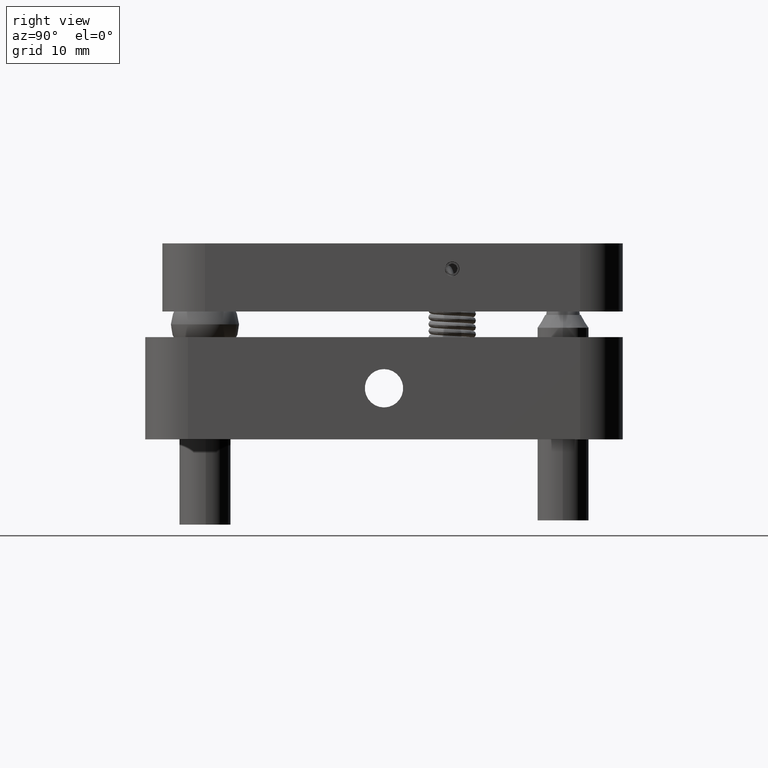
[diagram: clean part render]
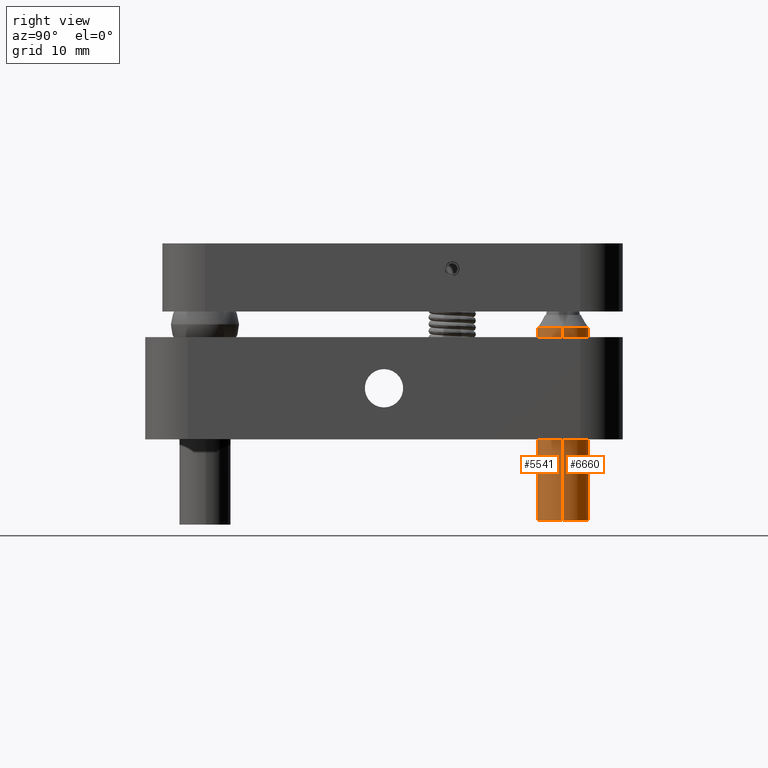
[diagram: same view with one multi-face feature highlighted, each face labeled with its STEP entity id]
A machine part, right view. The highlighted faces form ONE feature: a constant-radius fillet chain: 2 tangent blend faces with common blend radius 3 mm. The faces share edges in the B-rep.
Their STEP definitions:
[1] entity #5541 (Cylinder):
#67 = DIRECTION ( 'NONE',  ( 0.9999645372822545397, -0.008421649356671796066, 0.000000000000000000 ) ) ;
#664 = CARTESIAN_POINT ( 'NONE',  ( 18.00010638815322395, 21.02526494807002777, -24.49594898235215013 ) ) ;
#1257 = CARTESIAN_POINT ( 'NONE',  ( 23.99989361184675829, 20.97473505192999355, -1.895948982352149814 ) ) ;
#1393 = VECTOR ( 'NONE', #5382, 1000.000000000000000 ) ;
#1450 = ORIENTED_EDGE ( 'NONE', *, *, #10036, .T. ) ;
#1579 = DIRECTION ( 'NONE',  ( 0.9999645372822545397, -0.008421649356671796066, 0.000000000000000000 ) ) ;
#1780 = CIRCLE ( 'NONE', #9554, 3.000000000000000444 ) ;
#1846 = VERTEX_POINT ( 'NONE', #664 ) ;
#1877 = CIRCLE ( 'NONE', #6113, 3.000000000000000444 ) ;
#1960 = DIRECTION ( 'NONE',  ( 2.878923793137280352E-16, -1.671392772916721613E-16, 1.000000000000000000 ) ) ;
#2091 = CARTESIAN_POINT ( 'NONE',  ( 20.99999999999999289, 21.00000000000000711, -1.895948982352148926 ) ) ;
#2241 = EDGE_LOOP ( 'NONE', ( #13136, #3162, #1450, #8494 ) ) ;
#2903 = DIRECTION ( 'NONE',  ( 2.878923793137280352E-16, -1.671392772916721613E-16, 1.000000000000000000 ) ) ;
#3075 = EDGE_CURVE ( 'NONE', #1846, #4399, #12869, .T. ) ;
#3162 = ORIENTED_EDGE ( 'NONE', *, *, #4337, .T. ) ;
#4337 = EDGE_CURVE ( 'NONE', #1846, #7628, #1877, .T. ) ;
#4387 = VECTOR ( 'NONE', #12379, 1000.000000000000000 ) ;
#4399 = VERTEX_POINT ( 'NONE', #13642 ) ;
#5048 = EDGE_CURVE ( 'NONE', #4399, #7010, #1780, .T. ) ;
#5382 = DIRECTION ( 'NONE',  ( 2.878923793137280352E-16, -1.671392772916721613E-16, 1.000000000000000000 ) ) ;
#5541 = ADVANCED_FACE ( 'NONE', ( #9017 ), #11106, .T. ) ;
#6113 = AXIS2_PLACEMENT_3D ( 'NONE', #13710, #1960, #67 ) ;
#6478 = AXIS2_PLACEMENT_3D ( 'NONE', #8947, #2903, #1579 ) ;
#7010 = VERTEX_POINT ( 'NONE', #1257 ) ;
#7628 = VERTEX_POINT ( 'NONE', #8355 ) ;
#8092 = LINE ( 'NONE', #10233, #4387 ) ;
#8355 = CARTESIAN_POINT ( 'NONE',  ( 23.99989361184675118, 20.97473505193000065, -24.49594898235215013 ) ) ;
#8494 = ORIENTED_EDGE ( 'NONE', *, *, #5048, .F. ) ;
#8947 = CARTESIAN_POINT ( 'NONE',  ( 21.00000000000000355, 21.00000000000000355, 33.09316836970400999 ) ) ;
#9017 = FACE_OUTER_BOUND ( 'NONE', #2241, .T. ) ;
#9518 = DIRECTION ( 'NONE',  ( 2.878923793137280352E-16, -1.671392772916721613E-16, 1.000000000000000000 ) ) ;
#9554 = AXIS2_PLACEMENT_3D ( 'NONE', #2091, #9518, #10568 ) ;
#10036 = EDGE_CURVE ( 'NONE', #7628, #7010, #8092, .T. ) ;
#10233 = CARTESIAN_POINT ( 'NONE',  ( 23.99989361184676895, 20.97473505192998999, 33.09316836970400999 ) ) ;
#10568 = DIRECTION ( 'NONE',  ( 0.9999645372822545397, -0.008421649356671796066, -2.891205793294677833E-16 ) ) ;
#11106 = CYLINDRICAL_SURFACE ( 'NONE', #6478, 3.000000000000000444 ) ;
#12379 = DIRECTION ( 'NONE',  ( 2.878923793137280352E-16, -1.671392772916721613E-16, 1.000000000000000000 ) ) ;
#12601 = CARTESIAN_POINT ( 'NONE',  ( 18.00010638815324171, 21.02526494807002067, 33.09316836970400999 ) ) ;
#12869 = LINE ( 'NONE', #12601, #1393 ) ;
#13136 = ORIENTED_EDGE ( 'NONE', *, *, #3075, .F. ) ;
#13642 = CARTESIAN_POINT ( 'NONE',  ( 18.00010638815323105, 21.02526494807002422, -1.895948982352148038 ) ) ;
#13710 = CARTESIAN_POINT ( 'NONE',  ( 20.99999999999998579, 21.00000000000001421, -24.49594898235215013 ) ) ;
[2] entity #6660 (Cylinder):
#165 = ORIENTED_EDGE ( 'NONE', *, *, #933, .T. ) ;
#664 = CARTESIAN_POINT ( 'NONE',  ( 18.00010638815322395, 21.02526494807002777, -24.49594898235215013 ) ) ;
#701 = CARTESIAN_POINT ( 'NONE',  ( 21.00000000000000355, 21.00000000000000355, 33.09316836970400999 ) ) ;
#933 = EDGE_CURVE ( 'NONE', #7628, #1846, #2452, .T. ) ;
#1140 = DIRECTION ( 'NONE',  ( 0.9999645372822545397, -0.008421649356671796066, -2.891205793294677833E-16 ) ) ;
#1257 = CARTESIAN_POINT ( 'NONE',  ( 23.99989361184675829, 20.97473505192999355, -1.895948982352149814 ) ) ;
#1393 = VECTOR ( 'NONE', #5382, 1000.000000000000000 ) ;
#1846 = VERTEX_POINT ( 'NONE', #664 ) ;
#2452 = CIRCLE ( 'NONE', #9111, 3.000000000000000444 ) ;
#3075 = EDGE_CURVE ( 'NONE', #1846, #4399, #12869, .T. ) ;
#3500 = AXIS2_PLACEMENT_3D ( 'NONE', #701, #7272, #11494 ) ;
#4387 = VECTOR ( 'NONE', #12379, 1000.000000000000000 ) ;
#4399 = VERTEX_POINT ( 'NONE', #13642 ) ;
#5113 = CYLINDRICAL_SURFACE ( 'NONE', #3500, 3.000000000000000444 ) ;
#5246 = ORIENTED_EDGE ( 'NONE', *, *, #6154, .F. ) ;
#5382 = DIRECTION ( 'NONE',  ( 2.878923793137280352E-16, -1.671392772916721613E-16, 1.000000000000000000 ) ) ;
#5464 = DIRECTION ( 'NONE',  ( 2.878923793137280352E-16, -1.671392772916721613E-16, 1.000000000000000000 ) ) ;
#5675 = DIRECTION ( 'NONE',  ( 2.878923793137280352E-16, -1.671392772916721613E-16, 1.000000000000000000 ) ) ;
#5986 = EDGE_LOOP ( 'NONE', ( #165, #13065, #5246, #12624 ) ) ;
#6154 = EDGE_CURVE ( 'NONE', #7010, #4399, #11324, .T. ) ;
#6660 = ADVANCED_FACE ( 'NONE', ( #10239 ), #5113, .T. ) ;
#7010 = VERTEX_POINT ( 'NONE', #1257 ) ;
#7272 = DIRECTION ( 'NONE',  ( 2.878923793137280352E-16, -1.671392772916721613E-16, 1.000000000000000000 ) ) ;
#7571 = AXIS2_PLACEMENT_3D ( 'NONE', #10868, #5675, #1140 ) ;
#7628 = VERTEX_POINT ( 'NONE', #8355 ) ;
#8092 = LINE ( 'NONE', #10233, #4387 ) ;
#8355 = CARTESIAN_POINT ( 'NONE',  ( 23.99989361184675118, 20.97473505193000065, -24.49594898235215013 ) ) ;
#9111 = AXIS2_PLACEMENT_3D ( 'NONE', #11902, #5464, #9681 ) ;
#9681 = DIRECTION ( 'NONE',  ( 0.9999645372822545397, -0.008421649356671796066, 0.000000000000000000 ) ) ;
#10036 = EDGE_CURVE ( 'NONE', #7628, #7010, #8092, .T. ) ;
#10233 = CARTESIAN_POINT ( 'NONE',  ( 23.99989361184676895, 20.97473505192998999, 33.09316836970400999 ) ) ;
#10239 = FACE_OUTER_BOUND ( 'NONE', #5986, .T. ) ;
#10868 = CARTESIAN_POINT ( 'NONE',  ( 20.99999999999999289, 21.00000000000000711, -1.895948982352148926 ) ) ;
#11324 = CIRCLE ( 'NONE', #7571, 3.000000000000000444 ) ;
#11494 = DIRECTION ( 'NONE',  ( 0.9999645372822545397, -0.008421649356671796066, 0.000000000000000000 ) ) ;
#11902 = CARTESIAN_POINT ( 'NONE',  ( 20.99999999999998579, 21.00000000000001421, -24.49594898235215013 ) ) ;
#12379 = DIRECTION ( 'NONE',  ( 2.878923793137280352E-16, -1.671392772916721613E-16, 1.000000000000000000 ) ) ;
#12601 = CARTESIAN_POINT ( 'NONE',  ( 18.00010638815324171, 21.02526494807002067, 33.09316836970400999 ) ) ;
#12624 = ORIENTED_EDGE ( 'NONE', *, *, #10036, .F. ) ;
#12869 = LINE ( 'NONE', #12601, #1393 ) ;
#13065 = ORIENTED_EDGE ( 'NONE', *, *, #3075, .T. ) ;
#13642 = CARTESIAN_POINT ( 'NONE',  ( 18.00010638815323105, 21.02526494807002422, -1.895948982352148038 ) ) ;